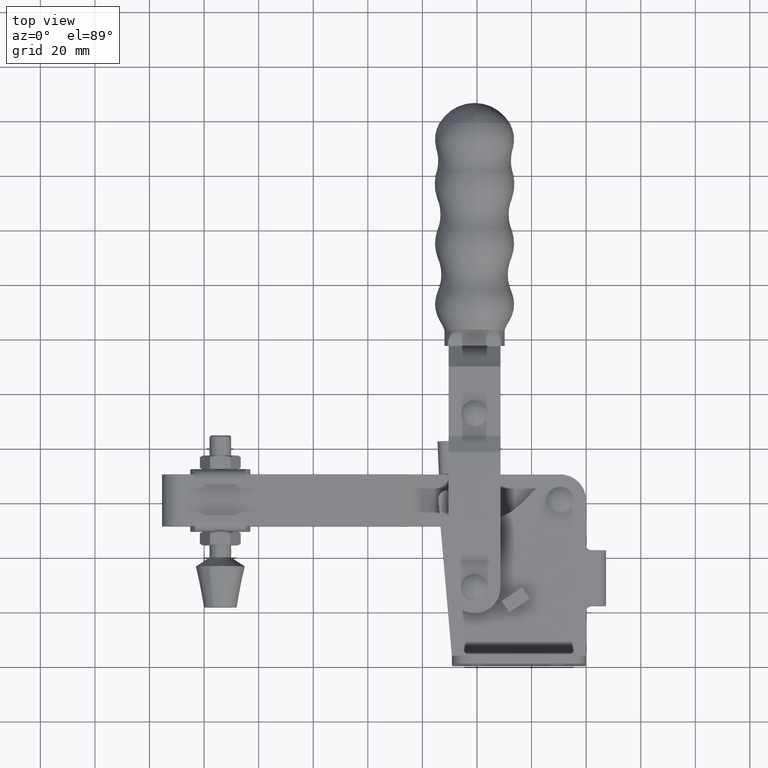
[diagram: clean part render]
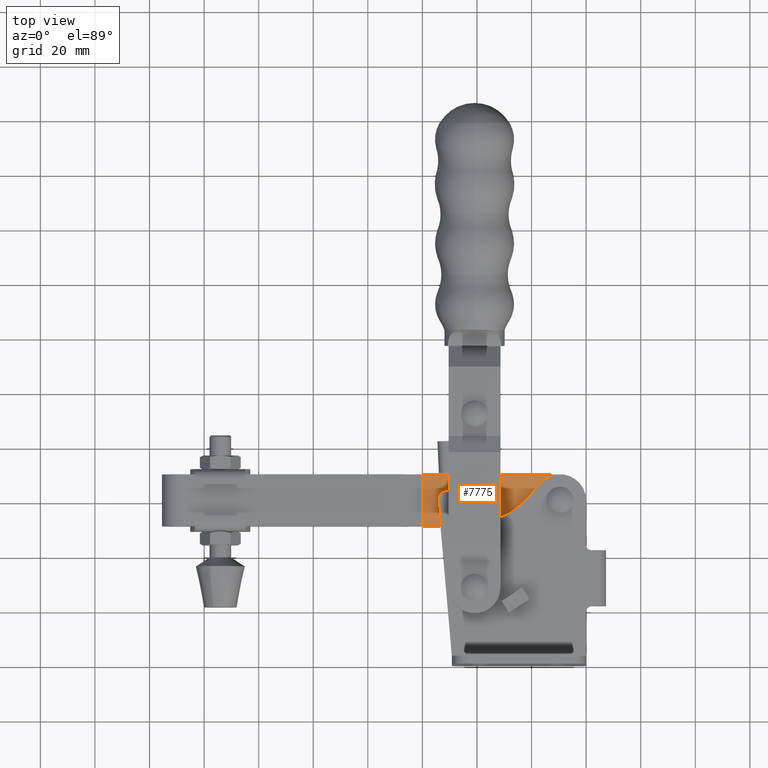
[diagram: same view with one face highlighted and labeled with its STEP entity id]
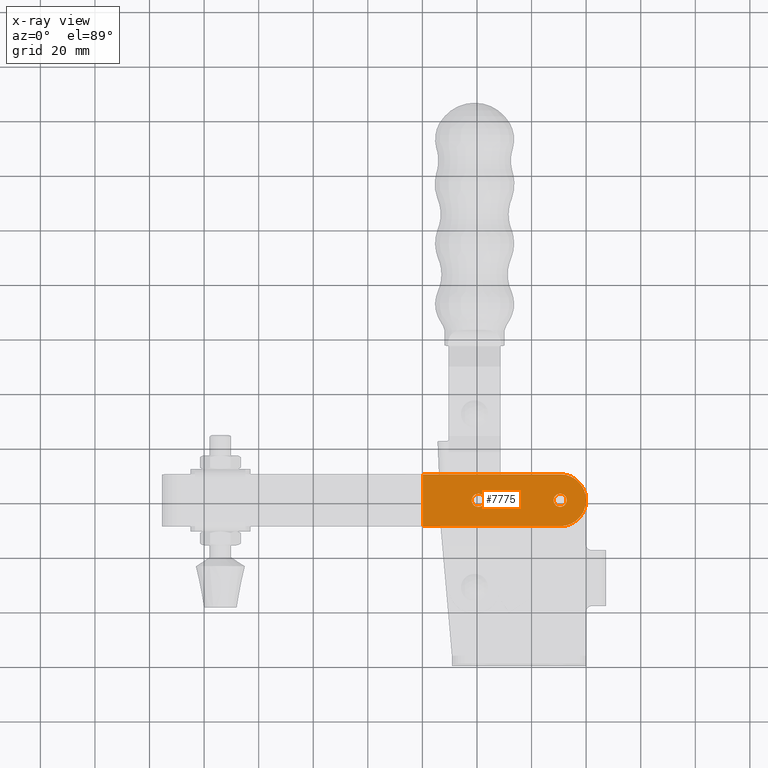
[diagram: x-ray of the same camera — body ghosted, the highlighted face saturated]
A machine part, top view. The second image highlights one B-rep face of the part: STEP entity #7775.
The next image is the same camera in x-ray: the body ghosted, the highlighted face saturated — about 0% of this face is hidden behind the body in this view.
In plain terms, the highlighted planar face has unit normal (-0, -0, -1).
Its self-contained STEP definition (entity closure, byte-faithful):
#190 = EDGE_CURVE ( 'NONE', #901, #2412, #1351, .T. ) ;
#210 = DIRECTION ( 'NONE',  ( -1.000000000000000000, -1.066895371021636000E-045, 7.876895318494915600E-016 ) ) ;
#687 = AXIS2_PLACEMENT_3D ( 'NONE', #4755, #11408, #5715 ) ;
#688 = CARTESIAN_POINT ( 'NONE',  ( -39.51785875746133300, 60.66000000000021000, 2.999999999999897000 ) ) ;
#710 = ORIENTED_EDGE ( 'NONE', *, *, #3491, .F. ) ;
#739 = CARTESIAN_POINT ( 'NONE',  ( -59.77485147507503200, 70.16000000000022400, 2.999999999999944000 ) ) ;
#854 = VERTEX_POINT ( 'NONE', #1485 ) ;
#861 = CARTESIAN_POINT ( 'NONE',  ( -59.77485147507503200, 51.16000000000018800, 2.999999999999944000 ) ) ;
#901 = VERTEX_POINT ( 'NONE', #3538 ) ;
#905 = FACE_BOUND ( 'NONE', #10854, .T. ) ;
#1351 = CIRCLE ( 'NONE', #687, 2.399999999999999500 ) ;
#1485 = CARTESIAN_POINT ( 'NONE',  ( -37.11785875746133500, 60.66000000000021000, 2.999999999999897000 ) ) ;
#1587 = CARTESIAN_POINT ( 'NONE',  ( -9.517858757461317200, 60.66000000000021000, 2.999999999999904100 ) ) ;
#1649 = VERTEX_POINT ( 'NONE', #739 ) ;
#1653 = DIRECTION ( 'NONE',  ( 1.000000000000000000, 0.0000000000000000000, 0.0000000000000000000 ) ) ;
#1841 = EDGE_CURVE ( 'NONE', #5244, #5991, #10417, .T. ) ;
#1900 = CARTESIAN_POINT ( 'NONE',  ( -59.77485147507503200, 51.16000000000018800, 2.999999999999944000 ) ) ;
#2010 = ORIENTED_EDGE ( 'NONE', *, *, #10846, .F. ) ;
#2239 = VERTEX_POINT ( 'NONE', #4370 ) ;
#2372 = DIRECTION ( 'NONE',  ( 0.0000000000000000000, 0.0000000000000000000, 1.000000000000000000 ) ) ;
#2412 = VERTEX_POINT ( 'NONE', #9884 ) ;
#2518 = DIRECTION ( 'NONE',  ( 1.000000000000000000, 0.0000000000000000000, -7.760605024106759400E-016 ) ) ;
#2616 = LINE ( 'NONE', #5815, #7306 ) ;
#2668 = ORIENTED_EDGE ( 'NONE', *, *, #4130, .F. ) ;
#3069 = LINE ( 'NONE', #3960, #10600 ) ;
#3491 = EDGE_CURVE ( 'NONE', #854, #2239, #12015, .T. ) ;
#3538 = CARTESIAN_POINT ( 'NONE',  ( -7.117858757461316800, 60.66000000000021000, 2.999999999999897000 ) ) ;
#3600 = CARTESIAN_POINT ( 'NONE',  ( -9.517858757461317200, 60.66000000000021000, 2.999999999999897000 ) ) ;
#3775 = CIRCLE ( 'NONE', #8083, 9.500000000000010700 ) ;
#3960 = CARTESIAN_POINT ( 'NONE',  ( -59.77485147507503200, 51.16000000000018800, 2.999999999999944000 ) ) ;
#4130 = EDGE_CURVE ( 'NONE', #9225, #5557, #9542, .T. ) ;
#4283 = CARTESIAN_POINT ( 'NONE',  ( -9.517858757461317200, 60.66000000000021000, 2.999999999999904100 ) ) ;
#4370 = CARTESIAN_POINT ( 'NONE',  ( -41.91785875746133200, 60.66000000000021000, 2.999999999999897000 ) ) ;
#4396 = ORIENTED_EDGE ( 'NONE', *, *, #1841, .F. ) ;
#4474 = EDGE_CURVE ( 'NONE', #9225, #1649, #2616, .T. ) ;
#4530 = DIRECTION ( 'NONE',  ( 1.000000000000000000, 0.0000000000000000000, 0.0000000000000000000 ) ) ;
#4538 = AXIS2_PLACEMENT_3D ( 'NONE', #3600, #10192, #4530 ) ;
#4691 = EDGE_CURVE ( 'NONE', #5557, #5244, #3775, .T. ) ;
#4755 = CARTESIAN_POINT ( 'NONE',  ( -9.517858757461317200, 60.66000000000021000, 2.999999999999897000 ) ) ;
#4950 = ORIENTED_EDGE ( 'NONE', *, *, #4691, .F. ) ;
#5082 = VECTOR ( 'NONE', #10303, 1000.000000000000000 ) ;
#5116 = AXIS2_PLACEMENT_3D ( 'NONE', #861, #11259, #5563 ) ;
#5227 = DIRECTION ( 'NONE',  ( 1.000000000000000000, 0.0000000000000000000, -7.760605024106759400E-016 ) ) ;
#5244 = VERTEX_POINT ( 'NONE', #9845 ) ;
#5406 = AXIS2_PLACEMENT_3D ( 'NONE', #688, #7249, #1653 ) ;
#5427 = ORIENTED_EDGE ( 'NONE', *, *, #8446, .F. ) ;
#5557 = VERTEX_POINT ( 'NONE', #10324 ) ;
#5563 = DIRECTION ( 'NONE',  ( 1.000000000000000000, 1.066895371021636000E-045, -7.876895318494915600E-016 ) ) ;
#5636 = CIRCLE ( 'NONE', #5406, 2.399999999999999500 ) ;
#5715 = DIRECTION ( 'NONE',  ( 1.000000000000000000, 0.0000000000000000000, 0.0000000000000000000 ) ) ;
#5815 = CARTESIAN_POINT ( 'NONE',  ( -59.77485147507503200, 70.16000000000022400, 2.999999999999944000 ) ) ;
#5894 = EDGE_CURVE ( 'NONE', #2412, #901, #9944, .T. ) ;
#5991 = VERTEX_POINT ( 'NONE', #1900 ) ;
#7052 = CARTESIAN_POINT ( 'NONE',  ( -9.517858757461329600, 70.16000000000021000, 2.999999999999889400 ) ) ;
#7249 = DIRECTION ( 'NONE',  ( 0.0000000000000000000, 0.0000000000000000000, 1.000000000000000000 ) ) ;
#7306 = VECTOR ( 'NONE', #210, 1000.000000000000000 ) ;
#7484 = CARTESIAN_POINT ( 'NONE',  ( -59.77485147507503200, 51.16000000000018800, 2.999999999999944000 ) ) ;
#7775 = ADVANCED_FACE ( 'NONE', ( #10618, #905, #10931 ), #9323, .F. ) ;
#7991 = CARTESIAN_POINT ( 'NONE',  ( -39.51785875746133300, 60.66000000000021000, 2.999999999999897000 ) ) ;
#8083 = AXIS2_PLACEMENT_3D ( 'NONE', #4283, #10917, #5227 ) ;
#8141 = DIRECTION ( 'NONE',  ( -7.876895318494948200E-016, -1.725440637176524600E-030, -1.000000000000000000 ) ) ;
#8446 = EDGE_CURVE ( 'NONE', #5991, #1649, #3069, .T. ) ;
#8496 = EDGE_LOOP ( 'NONE', ( #4396, #4950, #2668, #9603, #5427 ) ) ;
#8794 = AXIS2_PLACEMENT_3D ( 'NONE', #1587, #8141, #2518 ) ;
#8950 = DIRECTION ( 'NONE',  ( 1.000000000000000000, 0.0000000000000000000, 0.0000000000000000000 ) ) ;
#9225 = VERTEX_POINT ( 'NONE', #7052 ) ;
#9323 = PLANE ( 'NONE',  #5116 ) ;
#9542 = CIRCLE ( 'NONE', #8794, 9.500000000000010700 ) ;
#9603 = ORIENTED_EDGE ( 'NONE', *, *, #4474, .T. ) ;
#9845 = CARTESIAN_POINT ( 'NONE',  ( -9.517858757461329600, 51.16000000000021000, 2.999999999999909400 ) ) ;
#9884 = CARTESIAN_POINT ( 'NONE',  ( -11.91785875746131600, 60.66000000000021000, 2.999999999999897000 ) ) ;
#9944 = CIRCLE ( 'NONE', #4538, 2.399999999999999500 ) ;
#10192 = DIRECTION ( 'NONE',  ( 0.0000000000000000000, 0.0000000000000000000, 1.000000000000000000 ) ) ;
#10303 = DIRECTION ( 'NONE',  ( -1.000000000000000000, -1.066895371021636000E-045, 7.876895318494915600E-016 ) ) ;
#10324 = CARTESIAN_POINT ( 'NONE',  ( -0.01785875746132537000, 60.66000000000021000, 2.999999999999897000 ) ) ;
#10417 = LINE ( 'NONE', #7484, #5082 ) ;
#10557 = DIRECTION ( 'NONE',  ( 0.0000000000000000000, 1.000000000000000000, -1.749992810198821300E-030 ) ) ;
#10585 = AXIS2_PLACEMENT_3D ( 'NONE', #7991, #2372, #8950 ) ;
#10600 = VECTOR ( 'NONE', #10557, 1000.000000000000000 ) ;
#10618 = FACE_OUTER_BOUND ( 'NONE', #8496, .T. ) ;
#10820 = ORIENTED_EDGE ( 'NONE', *, *, #5894, .F. ) ;
#10846 = EDGE_CURVE ( 'NONE', #2239, #854, #5636, .T. ) ;
#10849 = EDGE_LOOP ( 'NONE', ( #710, #2010 ) ) ;
#10854 = EDGE_LOOP ( 'NONE', ( #10965, #10820 ) ) ;
#10917 = DIRECTION ( 'NONE',  ( -7.876895318494948200E-016, -1.725440637176524600E-030, -1.000000000000000000 ) ) ;
#10931 = FACE_BOUND ( 'NONE', #10849, .T. ) ;
#10965 = ORIENTED_EDGE ( 'NONE', *, *, #190, .F. ) ;
#11259 = DIRECTION ( 'NONE',  ( -7.876895318494915600E-016, -1.725440637176524600E-030, -1.000000000000000000 ) ) ;
#11408 = DIRECTION ( 'NONE',  ( 0.0000000000000000000, 0.0000000000000000000, 1.000000000000000000 ) ) ;
#12015 = CIRCLE ( 'NONE', #10585, 2.399999999999999500 ) ;